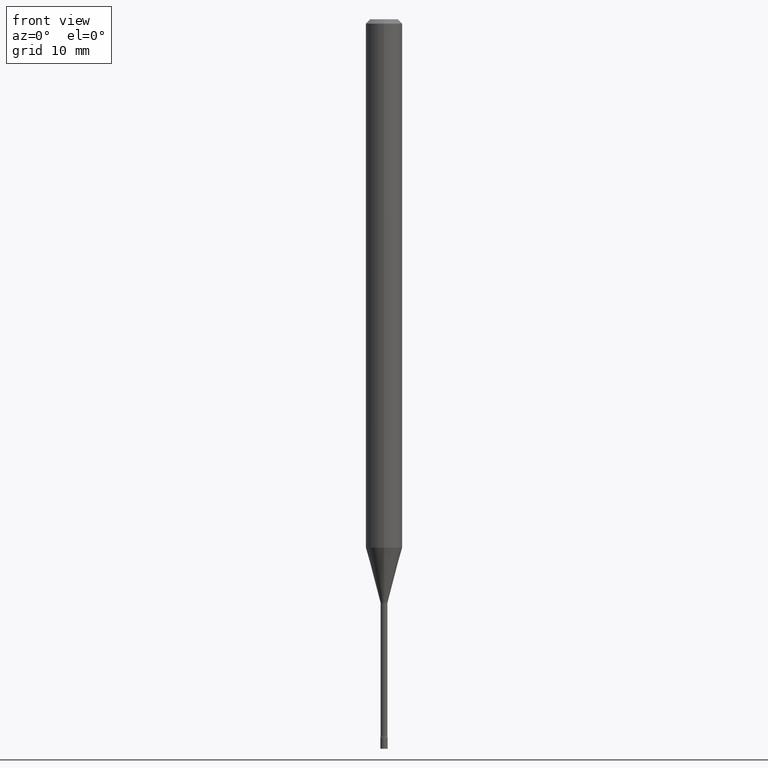
[diagram: clean part render]
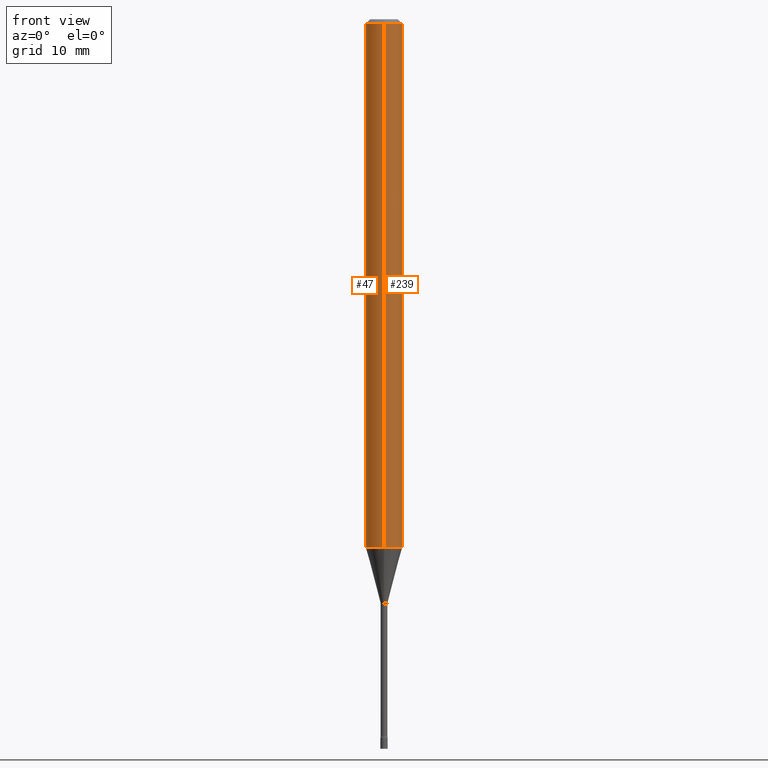
[diagram: same view with one multi-face feature highlighted, each face labeled with its STEP entity id]
A machine part, front view. The highlighted faces form ONE feature: a constant-radius fillet chain: 2 tangent blend faces with common blend radius 1.5875 mm. The faces share edges in the B-rep.
Their STEP definitions:
[1] entity #47 (Cylinder):
#23 = VERTEX_POINT ( 'NONE', #506 ) ;
#47 = ADVANCED_FACE ( 'NONE', ( #221 ), #309, .T. ) ;
#53 = EDGE_LOOP ( 'NONE', ( #268, #509, #497, #271 ) ) ;
#58 = VERTEX_POINT ( 'NONE', #383 ) ;
#82 = DIRECTION ( 'NONE',  ( -6.982962677686265922E-15, -1.000000000000000000, 4.370956789862821150E-15 ) ) ;
#103 = CARTESIAN_POINT ( 'NONE',  ( -4.364351673553916201E-16, -0.06250000000000000000, 2.182125945168216612E-16 ) ) ;
#108 = CIRCLE ( 'NONE', #411, 0.06250000000000000000 ) ;
#142 = EDGE_CURVE ( 'NONE', #424, #396, #351, .T. ) ;
#162 = DIRECTION ( 'NONE',  ( -6.982962677686265922E-15, -1.000000000000000000, 3.483106191921935554E-15 ) ) ;
#174 = CARTESIAN_POINT ( 'NONE',  ( 4.440892098501067924E-16, 0.06249999999999367867, -1.810598421515880130 ) ) ;
#198 = DIRECTION ( 'NONE',  ( -2.445524548783828463E-29, 3.491401512269146579E-15, 1.000000000000000000 ) ) ;
#221 = FACE_OUTER_BOUND ( 'NONE', #53, .T. ) ;
#226 = DIRECTION ( 'NONE',  ( -2.445524548783828743E-29, 3.491401512269146579E-15, 1.000000000000000000 ) ) ;
#266 = CARTESIAN_POINT ( 'NONE',  ( 4.427862887806334349E-29, -6.321526066992672815E-15, -1.810598421515879908 ) ) ;
#268 = ORIENTED_EDGE ( 'NONE', *, *, #142, .F. ) ;
#270 = CARTESIAN_POINT ( 'NONE',  ( 4.440892098500625669E-16, 0.06250000000000000000, -2.182125945168216612E-16 ) ) ;
#271 = ORIENTED_EDGE ( 'NONE', *, *, #296, .F. ) ;
#281 = DIRECTION ( 'NONE',  ( -2.445524548783828743E-29, 3.491401512269146579E-15, 1.000000000000000000 ) ) ;
#286 = CARTESIAN_POINT ( 'NONE',  ( 4.440892098501070882E-16, 0.06249999999999995143, -0.01500000000000024751 ) ) ;
#289 = AXIS2_PLACEMENT_3D ( 'NONE', #348, #508, #381 ) ;
#296 = EDGE_CURVE ( 'NONE', #396, #23, #108, .T. ) ;
#304 = AXIS2_PLACEMENT_3D ( 'NONE', #266, #226, #82 ) ;
#309 = CYLINDRICAL_SURFACE ( 'NONE', #289, 0.06250000000000000000 ) ;
#319 = VECTOR ( 'NONE', #198, 39.37007874015748143 ) ;
#336 = DIRECTION ( 'NONE',  ( -2.445524548783828463E-29, 3.491401512269146579E-15, 1.000000000000000000 ) ) ;
#348 = CARTESIAN_POINT ( 'NONE',  ( 0.000000000000000000, 0.000000000000000000, 0.000000000000000000 ) ) ;
#351 = LINE ( 'NONE', #270, #319 ) ;
#361 = EDGE_CURVE ( 'NONE', #424, #58, #429, .T. ) ;
#366 = CARTESIAN_POINT ( 'NONE',  ( 3.668286823175750261E-31, -5.237102268403730666E-17, -0.01500000000000003067 ) ) ;
#381 = DIRECTION ( 'NONE',  ( -6.982962677686265922E-15, -1.000000000000000000, 3.491401512269146579E-15 ) ) ;
#383 = CARTESIAN_POINT ( 'NONE',  ( -4.364351673553474439E-16, -0.06250000000000632827, -1.810598421515879464 ) ) ;
#396 = VERTEX_POINT ( 'NONE', #286 ) ;
#406 = VECTOR ( 'NONE', #336, 39.37007874015748143 ) ;
#411 = AXIS2_PLACEMENT_3D ( 'NONE', #366, #281, #162 ) ;
#424 = VERTEX_POINT ( 'NONE', #174 ) ;
#429 = CIRCLE ( 'NONE', #304, 0.06250000000000000000 ) ;
#465 = LINE ( 'NONE', #103, #406 ) ;
#471 = EDGE_CURVE ( 'NONE', #58, #23, #465, .T. ) ;
#497 = ORIENTED_EDGE ( 'NONE', *, *, #471, .T. ) ;
#506 = CARTESIAN_POINT ( 'NONE',  ( -4.364351673553912750E-16, -0.06250000000000005551, -0.01499999999999981209 ) ) ;
#508 = DIRECTION ( 'NONE',  ( -2.445524548783828743E-29, 3.491401512269146579E-15, 1.000000000000000000 ) ) ;
#509 = ORIENTED_EDGE ( 'NONE', *, *, #361, .T. ) ;
[2] entity #239 (Cylinder):
#19 = CIRCLE ( 'NONE', #491, 0.06250000000000000000 ) ;
#23 = VERTEX_POINT ( 'NONE', #506 ) ;
#52 = CARTESIAN_POINT ( 'NONE',  ( 3.668286823175750261E-31, -5.237102268403730666E-17, -0.01500000000000003067 ) ) ;
#58 = VERTEX_POINT ( 'NONE', #383 ) ;
#63 = DIRECTION ( 'NONE',  ( -6.982962677686265922E-15, -1.000000000000000000, 3.483106191921935554E-15 ) ) ;
#81 = CARTESIAN_POINT ( 'NONE',  ( 4.427862887806334349E-29, -6.321526066992672815E-15, -1.810598421515879908 ) ) ;
#83 = EDGE_CURVE ( 'NONE', #23, #396, #19, .T. ) ;
#84 = DIRECTION ( 'NONE',  ( -2.445524548783828743E-29, 3.491401512269146579E-15, 1.000000000000000000 ) ) ;
#97 = CIRCLE ( 'NONE', #290, 0.06250000000000000000 ) ;
#103 = CARTESIAN_POINT ( 'NONE',  ( -4.364351673553916201E-16, -0.06250000000000000000, 2.182125945168216612E-16 ) ) ;
#112 = EDGE_LOOP ( 'NONE', ( #387, #237, #456, #492 ) ) ;
#119 = CYLINDRICAL_SURFACE ( 'NONE', #518, 0.06250000000000000000 ) ;
#142 = EDGE_CURVE ( 'NONE', #424, #396, #351, .T. ) ;
#174 = CARTESIAN_POINT ( 'NONE',  ( 4.440892098501067924E-16, 0.06249999999999367867, -1.810598421515880130 ) ) ;
#198 = DIRECTION ( 'NONE',  ( -2.445524548783828463E-29, 3.491401512269146579E-15, 1.000000000000000000 ) ) ;
#237 = ORIENTED_EDGE ( 'NONE', *, *, #142, .T. ) ;
#239 = ADVANCED_FACE ( 'NONE', ( #359 ), #119, .T. ) ;
#270 = CARTESIAN_POINT ( 'NONE',  ( 4.440892098500625669E-16, 0.06250000000000000000, -2.182125945168216612E-16 ) ) ;
#274 = EDGE_CURVE ( 'NONE', #58, #424, #97, .T. ) ;
#286 = CARTESIAN_POINT ( 'NONE',  ( 4.440892098501070882E-16, 0.06249999999999995143, -0.01500000000000024751 ) ) ;
#290 = AXIS2_PLACEMENT_3D ( 'NONE', #81, #84, #365 ) ;
#317 = DIRECTION ( 'NONE',  ( -2.445524548783828743E-29, 3.491401512269146579E-15, 1.000000000000000000 ) ) ;
#319 = VECTOR ( 'NONE', #198, 39.37007874015748143 ) ;
#320 = DIRECTION ( 'NONE',  ( -6.982962677686265922E-15, -1.000000000000000000, 3.491401512269146579E-15 ) ) ;
#336 = DIRECTION ( 'NONE',  ( -2.445524548783828463E-29, 3.491401512269146579E-15, 1.000000000000000000 ) ) ;
#351 = LINE ( 'NONE', #270, #319 ) ;
#359 = FACE_OUTER_BOUND ( 'NONE', #112, .T. ) ;
#365 = DIRECTION ( 'NONE',  ( -6.982962677686265922E-15, -1.000000000000000000, 4.370956789862821150E-15 ) ) ;
#383 = CARTESIAN_POINT ( 'NONE',  ( -4.364351673553474439E-16, -0.06250000000000632827, -1.810598421515879464 ) ) ;
#387 = ORIENTED_EDGE ( 'NONE', *, *, #274, .T. ) ;
#396 = VERTEX_POINT ( 'NONE', #286 ) ;
#406 = VECTOR ( 'NONE', #336, 39.37007874015748143 ) ;
#424 = VERTEX_POINT ( 'NONE', #174 ) ;
#456 = ORIENTED_EDGE ( 'NONE', *, *, #83, .F. ) ;
#465 = LINE ( 'NONE', #103, #406 ) ;
#471 = EDGE_CURVE ( 'NONE', #58, #23, #465, .T. ) ;
#481 = DIRECTION ( 'NONE',  ( -2.445524548783828743E-29, 3.491401512269146579E-15, 1.000000000000000000 ) ) ;
#491 = AXIS2_PLACEMENT_3D ( 'NONE', #52, #481, #63 ) ;
#492 = ORIENTED_EDGE ( 'NONE', *, *, #471, .F. ) ;
#506 = CARTESIAN_POINT ( 'NONE',  ( -4.364351673553912750E-16, -0.06250000000000005551, -0.01499999999999981209 ) ) ;
#516 = CARTESIAN_POINT ( 'NONE',  ( 0.000000000000000000, 0.000000000000000000, 0.000000000000000000 ) ) ;
#518 = AXIS2_PLACEMENT_3D ( 'NONE', #516, #317, #320 ) ;